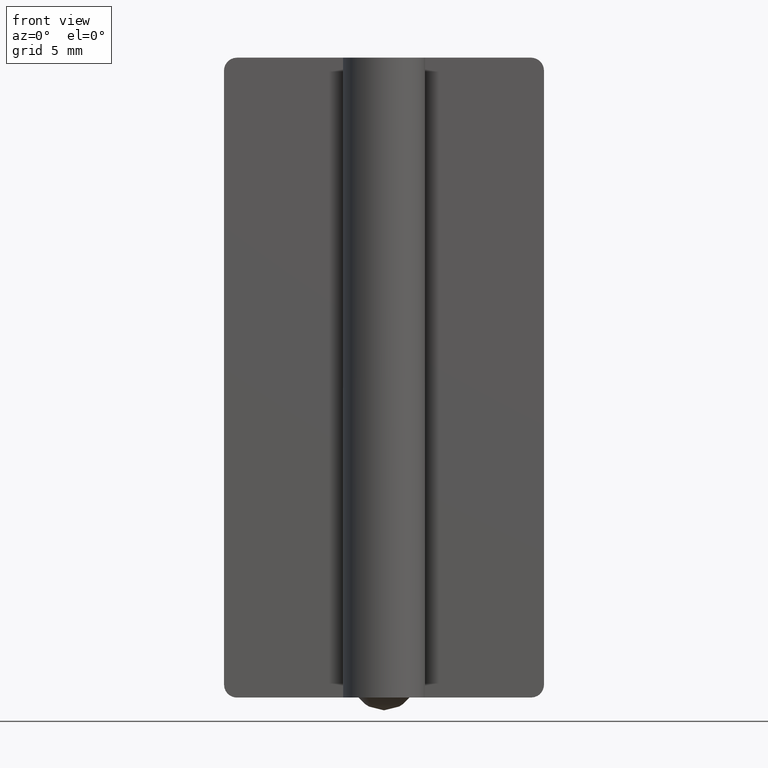
[diagram: clean part render]
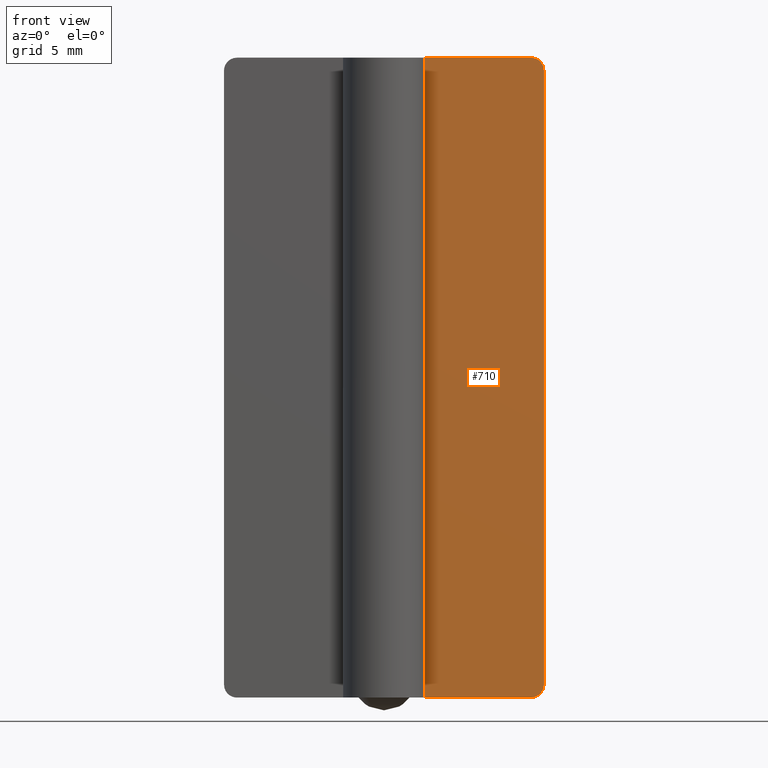
[diagram: same view with one face highlighted and labeled with its STEP entity id]
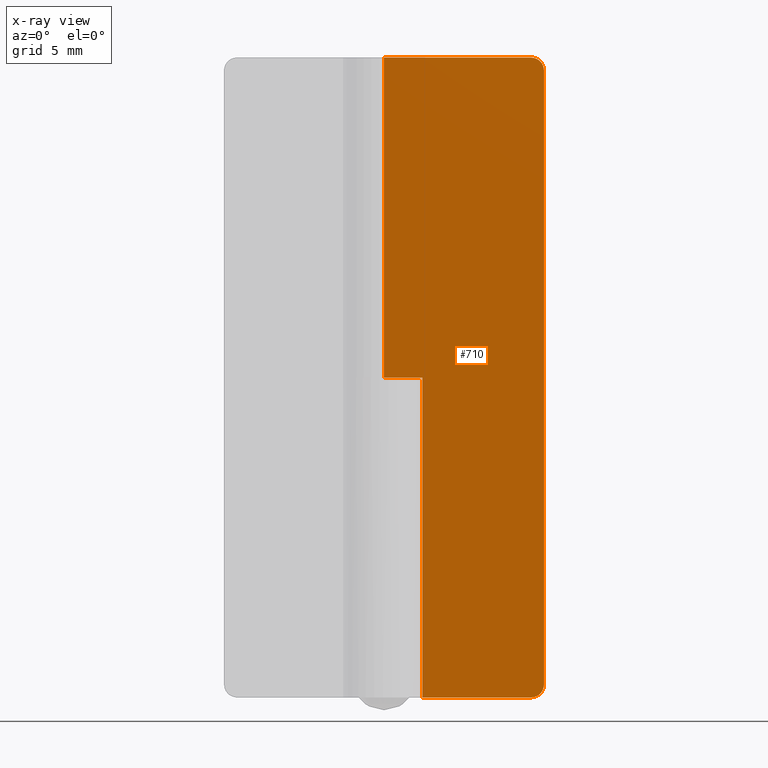
[diagram: x-ray of the same camera — body ghosted, the highlighted face saturated]
A machine part, front view. The second image highlights one B-rep face of the part: STEP entity #710.
The next image is the same camera in x-ray: the body ghosted, the highlighted face saturated — about 0% of this face is hidden behind the body in this view.
In plain terms, the highlighted face is a freeform B-spline surface patch.
Its self-contained STEP definition (entity closure, byte-faithful):
#338=CARTESIAN_POINT('',(3.0,2.0,0.0));
#339=VERTEX_POINT('',#338);
#340=CARTESIAN_POINT('',(3.0,2.0,25.0));
#341=VERTEX_POINT('',#340);
#342=CARTESIAN_POINT('',(3.0,2.0,0.0));
#343=CARTESIAN_POINT('',(3.0,2.0,25.0));
#344=QUASI_UNIFORM_CURVE('',1,(#342,#343),.UNSPECIFIED.,.F.,.U.);
#345=EDGE_CURVE('',#339,#341,#344,.T.);
#410=CARTESIAN_POINT('',(0.0,2.0,25.0));
#411=VERTEX_POINT('',#410);
#412=CARTESIAN_POINT('',(3.0,2.0,25.0));
#413=CARTESIAN_POINT('',(0.0,2.0,25.0));
#414=QUASI_UNIFORM_CURVE('',1,(#412,#413),.UNSPECIFIED.,.F.,.U.);
#415=EDGE_CURVE('',#341,#411,#414,.T.);
#453=CARTESIAN_POINT('',(12.500000000000000,2.0,49.0));
#454=VERTEX_POINT('',#453);
#455=CARTESIAN_POINT('',(11.500000000000000,2.0,50.0));
#456=VERTEX_POINT('',#455);
#457=CARTESIAN_POINT('',(12.500000000000000,2.0,49.0));
#458=CARTESIAN_POINT('',(12.500000000000000,2.000000000000000,50.0));
#459=CARTESIAN_POINT('',(11.500000000000000,2.0,50.0));
#467=(BOUNDED_CURVE()B_SPLINE_CURVE(2,(#457,#458,#459),.UNSPECIFIED.,.F.,.U.)CURVE()GEOMETRIC_REPRESENTATION_ITEM()QUASI_UNIFORM_CURVE()RATIONAL_B_SPLINE_CURVE((1.0,0.707106781186548,1.0))REPRESENTATION_ITEM(''));
#468=EDGE_CURVE('',#454,#456,#467,.T.);
#514=CARTESIAN_POINT('',(11.500000000000000,2.0,0.0));
#515=VERTEX_POINT('',#514);
#516=CARTESIAN_POINT('',(12.500000000000000,2.0,1.0));
#517=VERTEX_POINT('',#516);
#518=CARTESIAN_POINT('',(11.500000000000000,2.0,0.0));
#519=CARTESIAN_POINT('',(12.500000000000000,2.000000000000000,0.0));
#520=CARTESIAN_POINT('',(12.500000000000000,2.0,1.0));
#528=(BOUNDED_CURVE()B_SPLINE_CURVE(2,(#518,#519,#520),.UNSPECIFIED.,.F.,.U.)CURVE()GEOMETRIC_REPRESENTATION_ITEM()QUASI_UNIFORM_CURVE()RATIONAL_B_SPLINE_CURVE((1.0,0.707106781186548,1.0))REPRESENTATION_ITEM(''));
#529=EDGE_CURVE('',#515,#517,#528,.T.);
#566=CARTESIAN_POINT('',(-3.673819E-016,2.0,50.0));
#567=VERTEX_POINT('',#566);
#568=CARTESIAN_POINT('',(11.500000000000000,2.0,50.0));
#569=CARTESIAN_POINT('',(-3.673819E-016,2.0,50.0));
#570=QUASI_UNIFORM_CURVE('',1,(#568,#569),.UNSPECIFIED.,.F.,.U.);
#571=EDGE_CURVE('',#456,#567,#570,.T.);
#643=CARTESIAN_POINT('',(11.500000000000000,2.0,0.0));
#644=CARTESIAN_POINT('',(3.0,2.0,0.0));
#645=QUASI_UNIFORM_CURVE('',1,(#643,#644),.UNSPECIFIED.,.F.,.U.);
#646=EDGE_CURVE('',#515,#339,#645,.T.);
#662=CARTESIAN_POINT('',(12.500000000000000,2.0,1.0));
#663=CARTESIAN_POINT('',(12.500000000000000,2.0,49.0));
#664=QUASI_UNIFORM_CURVE('',1,(#662,#663),.UNSPECIFIED.,.F.,.U.);
#665=EDGE_CURVE('',#517,#454,#664,.T.);
#691=CARTESIAN_POINT('',(-0.624374975772575,2.0,-2.497499903090299));
#692=CARTESIAN_POINT('',(-0.624374975772575,2.0,52.497501244194808));
#693=CARTESIAN_POINT('',(13.124375311048700,2.0,-2.497499903090299));
#694=CARTESIAN_POINT('',(13.124375311048700,2.0,52.497501244194808));
#695=B_SPLINE_SURFACE_WITH_KNOTS('',1,1,((#691,#693),(#692,#694)),.UNSPECIFIED.,.F.,.F.,.U.,(2,2),(2,2),(0.0,54.995001147285109),(0.0,13.748750286821281),.UNSPECIFIED.);
#696=ORIENTED_EDGE('',*,*,#415,.F.);
#697=ORIENTED_EDGE('',*,*,#345,.F.);
#698=ORIENTED_EDGE('',*,*,#646,.F.);
#699=ORIENTED_EDGE('',*,*,#529,.T.);
#700=ORIENTED_EDGE('',*,*,#665,.T.);
#701=ORIENTED_EDGE('',*,*,#468,.T.);
#702=ORIENTED_EDGE('',*,*,#571,.T.);
#703=CARTESIAN_POINT('',(0.0,2.0,25.0));
#704=CARTESIAN_POINT('',(-3.673819E-016,2.0,50.0));
#705=QUASI_UNIFORM_CURVE('',1,(#703,#704),.UNSPECIFIED.,.F.,.U.);
#706=EDGE_CURVE('',#411,#567,#705,.T.);
#707=ORIENTED_EDGE('',*,*,#706,.F.);
#708=EDGE_LOOP('',(#696,#697,#698,#699,#700,#701,#702,#707));
#709=FACE_OUTER_BOUND('',#708,.T.);
#710=ADVANCED_FACE('',(#709),#695,.F.);